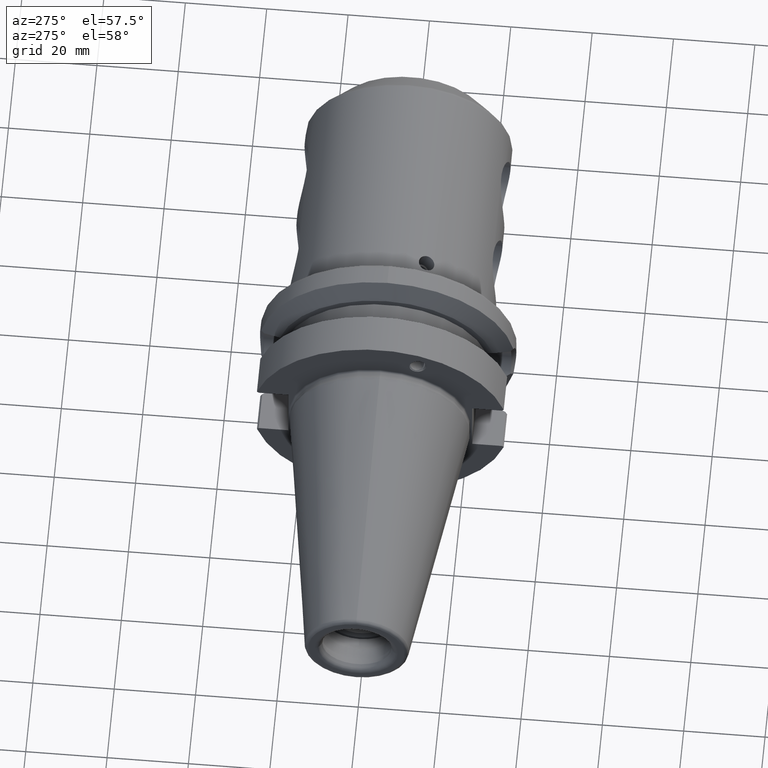
[diagram: clean part render]
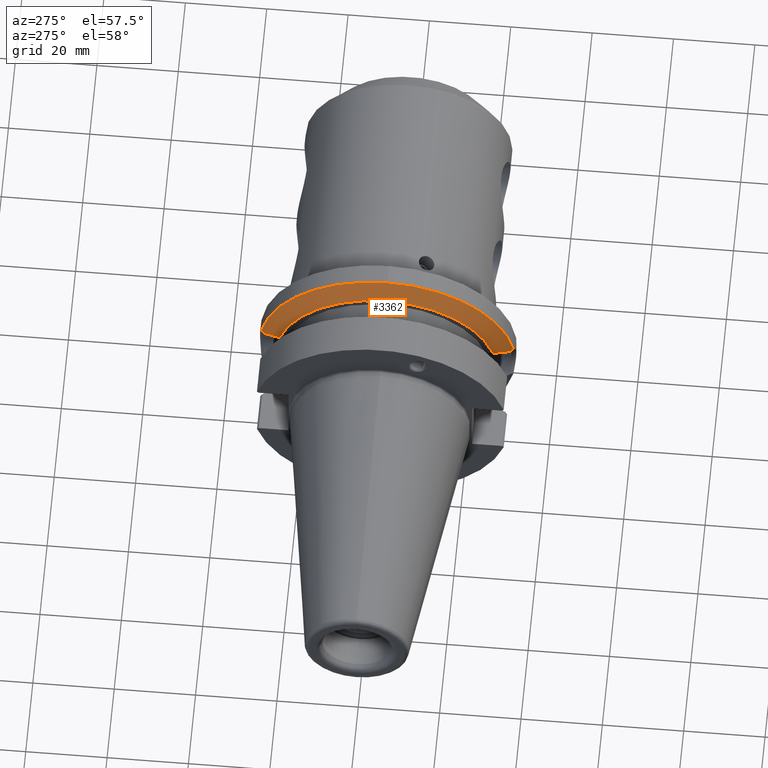
[diagram: same view with one face highlighted and labeled with its STEP entity id]
A machine part, auxiliary view. The second image highlights one B-rep face of the part: STEP entity #3362.
In plain terms, the highlighted conical surface has half-angle 60 deg.
Its self-contained STEP definition (entity closure, byte-faithful):
#717=CARTESIAN_POINT('',(2.16309635E1,0.E0,0.E0));
#718=DIRECTION('',(1.E0,0.E0,0.E0));
#719=DIRECTION('',(0.E0,0.E0,1.E0));
#720=AXIS2_PLACEMENT_3D('',#717,#718,#719);
#722=CARTESIAN_POINT('',(1.91E1,-2.622423715090E1,6.897825744392E0));
#723=CARTESIAN_POINT('',(1.937816045766E1,-2.676643204292E1,6.730473604449E0));
#724=CARTESIAN_POINT('',(1.990303269829E1,-2.779127514901E1,6.368641630073E0));
#725=CARTESIAN_POINT('',(2.059086834754E1,-2.913753076905E1,5.766648249127E0));
#726=CARTESIAN_POINT('',(2.099357945593E1,-2.992716271349E1,5.325812749184E0));
#727=CARTESIAN_POINT('',(2.117998131741E1,-3.029289531603E1,5.098022438631E0));
#729=CARTESIAN_POINT('',(2.16309635E1,3.098871085802E1,5.652415356123E0));
#730=CARTESIAN_POINT('',(2.155414334301E1,3.087051438261E1,5.558911847172E0));
#731=CARTESIAN_POINT('',(2.140215551002E1,3.063633978232E1,5.373035076681E0));
#732=CARTESIAN_POINT('',(2.125348414074E1,3.040662765083E1,5.189343646915E0));
#733=CARTESIAN_POINT('',(2.117998131741E1,3.029289531603E1,5.098022438631E0));
#735=CARTESIAN_POINT('',(2.16309635E1,0.E0,0.E0));
#736=DIRECTION('',(1.E0,0.E0,0.E0));
#737=DIRECTION('',(0.E0,9.837685986673E-1,1.794417573372E-1));
#738=AXIS2_PLACEMENT_3D('',#735,#736,#737);
#773=CARTESIAN_POINT('',(2.117998131741E1,-3.029289531603E1,5.098022438631E0));
#774=CARTESIAN_POINT('',(2.125097782396E1,-3.040274957858E1,5.186229754596E0));
#775=CARTESIAN_POINT('',(2.139711972524E1,-3.062856992174E1,5.366845705380E0));
#776=CARTESIAN_POINT('',(2.155161500107E1,-3.086662424338E1,5.555834414729E0));
#777=CARTESIAN_POINT('',(2.16309635E1,-3.098871085802E1,5.652415356123E0));
#844=CARTESIAN_POINT('',(1.91E1,0.E0,0.E0));
#845=DIRECTION('',(1.E0,0.E0,0.E0));
#846=DIRECTION('',(0.E0,9.671043850984E-1,2.543798504666E-1));
#847=AXIS2_PLACEMENT_3D('',#844,#845,#846);
#869=CARTESIAN_POINT('',(2.117998131741E1,3.029289531603E1,5.098022438631E0));
#870=CARTESIAN_POINT('',(2.104302031893E1,3.002416890941E1,5.265394095386E0));
#871=CARTESIAN_POINT('',(2.075150822612E1,2.945248076159E1,5.593999777963E0));
#872=CARTESIAN_POINT('',(2.026350284716E1,2.849665761898E1,6.060198415023E0));
#873=CARTESIAN_POINT('',(1.971773001892E1,2.742935446498E1,6.499361055365E0));
#874=CARTESIAN_POINT('',(1.931267643324E1,2.663878951656E1,6.769871338085E0));
#875=CARTESIAN_POINT('',(1.91E1,2.622423715090E1,6.897825744392E0));
#933=CARTESIAN_POINT('',(2.16309635E1,3.098871085802E1,5.652415356123E0));
#2275=CARTESIAN_POINT('',(1.91E1,2.622423715090E1,6.897825744392E0));
#2277=VERTEX_POINT('',#2275);
#2297=CARTESIAN_POINT('',(2.16309635E1,0.E0,3.15E1));
#2298=VERTEX_POINT('',#2297);
#2359=VERTEX_POINT('',#933);
#2366=VERTEX_POINT('',#733);
#2399=VERTEX_POINT('',#773);
#2400=VERTEX_POINT('',#777);
#2407=CARTESIAN_POINT('',(1.91E1,-2.622423715090E1,6.897825744392E0));
#2409=VERTEX_POINT('',#2407);
#3342=CARTESIAN_POINT('',(2.036548175E1,0.E0,0.E0));
#3343=DIRECTION('',(1.E0,0.E0,0.E0));
#3344=DIRECTION('',(0.E0,0.E0,1.E0));
#3345=AXIS2_PLACEMENT_3D('',#3342,#3343,#3344);
#3346=CONICAL_SURFACE('',#3345,2.930812131295E1,6.E1);
#3347=ORIENTED_EDGE('',*,*,#3332,.T.);
#3349=ORIENTED_EDGE('',*,*,#3348,.F.);
#3351=ORIENTED_EDGE('',*,*,#3350,.F.);
#3353=ORIENTED_EDGE('',*,*,#3352,.F.);
#3355=ORIENTED_EDGE('',*,*,#3354,.F.);
#3357=ORIENTED_EDGE('',*,*,#3356,.F.);
#3359=ORIENTED_EDGE('',*,*,#3358,.T.);
#3360=EDGE_LOOP('',(#3347,#3349,#3351,#3353,#3355,#3357,#3359));
#3361=FACE_OUTER_BOUND('',#3360,.F.);
#3362=ADVANCED_FACE('',(#3361),#3346,.T.);
#721=CIRCLE('',#720,3.15E1);
#728=B_SPLINE_CURVE_WITH_KNOTS('',3,(#722,#723,#724,#725,#726,#727),
.UNSPECIFIED.,.F.,.F.,(4,1,1,4),(0.E0,3.333333333333E-1,6.666666666667E-1,1.E0),
.UNSPECIFIED.);
#734=B_SPLINE_CURVE_WITH_KNOTS('',3,(#729,#730,#731,#732,#733),.UNSPECIFIED.,
.F.,.F.,(4,1,4),(0.E0,5.E-1,1.E0),.UNSPECIFIED.);
#739=CIRCLE('',#738,3.15E1);
#778=B_SPLINE_CURVE_WITH_KNOTS('',3,(#773,#774,#775,#776,#777),.UNSPECIFIED.,
.F.,.F.,(4,1,4),(0.E0,5.E-1,1.E0),.UNSPECIFIED.);
#848=CIRCLE('',#847,2.711624262590E1);
#876=B_SPLINE_CURVE_WITH_KNOTS('',3,(#869,#870,#871,#872,#873,#874,#875),
.UNSPECIFIED.,.F.,.F.,(4,1,1,1,4),(0.E0,2.5E-1,5.E-1,7.5E-1,1.E0),
.UNSPECIFIED.);
#3332=EDGE_CURVE('',#2298,#2400,#721,.T.);
#3348=EDGE_CURVE('',#2399,#2400,#778,.T.);
#3350=EDGE_CURVE('',#2409,#2399,#728,.T.);
#3352=EDGE_CURVE('',#2277,#2409,#848,.T.);
#3354=EDGE_CURVE('',#2366,#2277,#876,.T.);
#3356=EDGE_CURVE('',#2359,#2366,#734,.T.);
#3358=EDGE_CURVE('',#2359,#2298,#739,.T.);